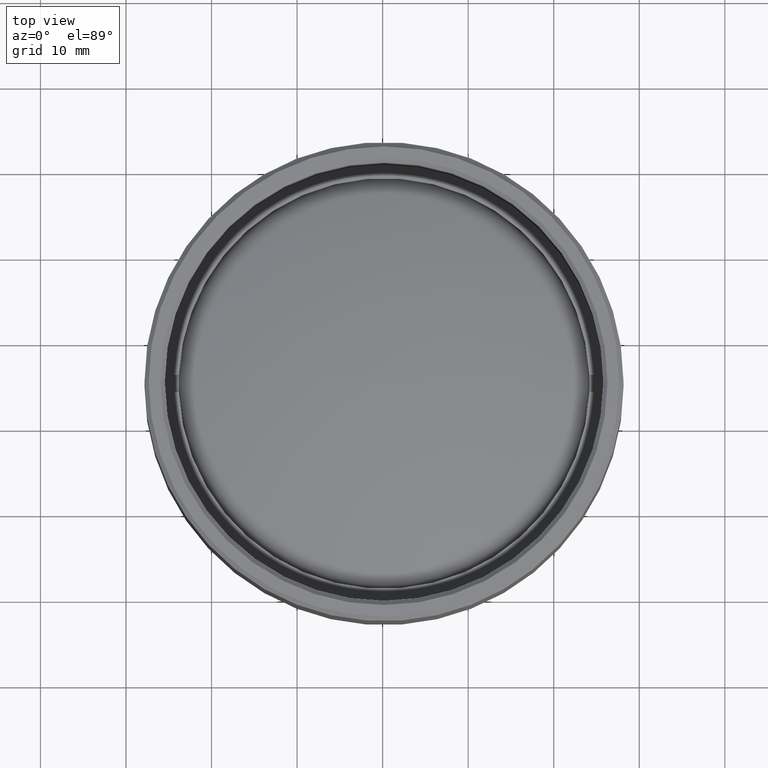
[diagram: clean part render]
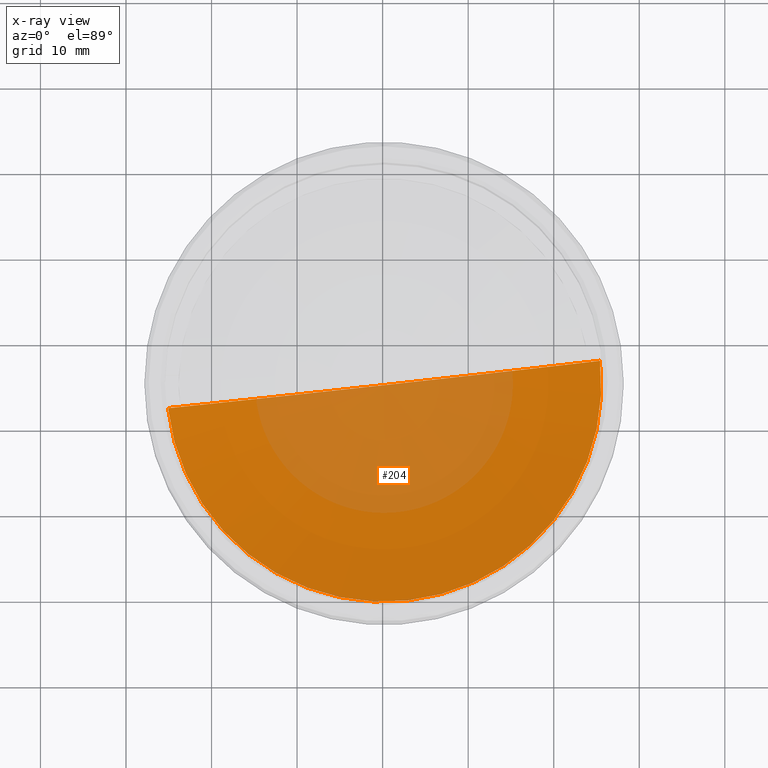
[diagram: x-ray — body ghosted, one internal face saturated and labeled with its STEP entity id]
A machine part, top view, then the same camera in x-ray: the body is ghosted and one INTERNAL B-rep face — a face not visible from any outside direction — is saturated and labeled: STEP entity #204.
In plain terms, the highlighted spherical surface has radius 72.1 mm.
Its self-contained STEP definition (entity closure, byte-faithful):
#81 = DIRECTION ( 'NONE',  ( 0.000000000000000000, 1.000000000000000000, 0.000000000000000000 ) ) ;
#154 = EDGE_CURVE ( 'NONE', #1500, #564, #1331, .T. ) ;
#176 = FACE_OUTER_BOUND ( 'NONE', #1593, .T. ) ;
#204 = ADVANCED_FACE ( 'NONE', ( #176 ), #434, .F. ) ;
#227 = AXIS2_PLACEMENT_3D ( 'NONE', #1632, #1261, #862 ) ;
#296 = AXIS2_PLACEMENT_3D ( 'NONE', #1209, #81, #512 ) ;
#400 = ORIENTED_EDGE ( 'NONE', *, *, #439, .T. ) ;
#434 = SPHERICAL_SURFACE ( 'NONE', #227, 72.09999999999999432 ) ;
#439 = EDGE_CURVE ( 'NONE', #564, #1500, #1536, .T. ) ;
#512 = DIRECTION ( 'NONE',  ( 0.000000000000000000, 0.000000000000000000, 1.000000000000000000 ) ) ;
#564 = VERTEX_POINT ( 'NONE', #1463 ) ;
#862 = DIRECTION ( 'NONE',  ( -1.000000000000000000, 0.000000000000000000, 0.000000000000000000 ) ) ;
#962 = AXIS2_PLACEMENT_3D ( 'NONE', #1665, #1123, #1545 ) ;
#1123 = DIRECTION ( 'NONE',  ( 0.000000000000000000, 0.000000000000000000, 1.000000000000000000 ) ) ;
#1187 = ORIENTED_EDGE ( 'NONE', *, *, #154, .T. ) ;
#1209 = CARTESIAN_POINT ( 'NONE',  ( 0.000000000000000000, 0.000000000000000000, 60.10000000000000142 ) ) ;
#1254 = CARTESIAN_POINT ( 'NONE',  ( -25.39999999999999858, 0.000000000000000000, -7.377774118594039976 ) ) ;
#1261 = DIRECTION ( 'NONE',  ( -0.000000000000000000, -0.000000000000000000, -1.000000000000000000 ) ) ;
#1331 = CIRCLE ( 'NONE', #962, 25.39999999999999858 ) ;
#1463 = CARTESIAN_POINT ( 'NONE',  ( 25.39999999999999858, -3.110602869834275287E-15, -7.377774118594039976 ) ) ;
#1500 = VERTEX_POINT ( 'NONE', #1254 ) ;
#1536 = CIRCLE ( 'NONE', #296, 72.09999999999998010 ) ;
#1545 = DIRECTION ( 'NONE',  ( 1.000000000000000000, 0.000000000000000000, 0.000000000000000000 ) ) ;
#1593 = EDGE_LOOP ( 'NONE', ( #1187, #400 ) ) ;
#1632 = CARTESIAN_POINT ( 'NONE',  ( 0.000000000000000000, 0.000000000000000000, 60.10000000000000142 ) ) ;
#1665 = CARTESIAN_POINT ( 'NONE',  ( 0.000000000000000000, 0.000000000000000000, -7.377774118594039976 ) ) ;